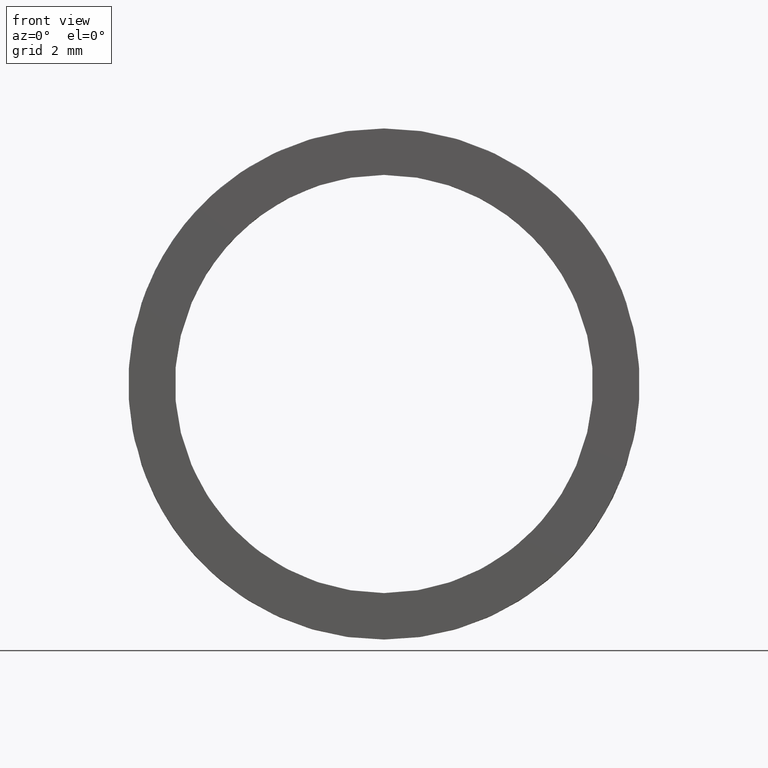
[diagram: clean part render]
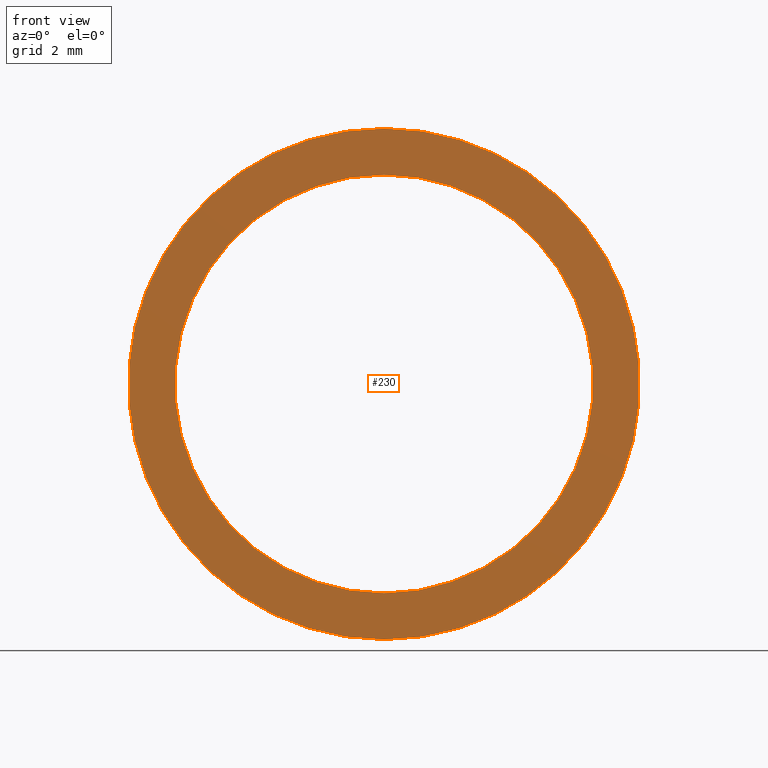
[diagram: same view with one face highlighted and labeled with its STEP entity id]
A machine part, front view. The second image highlights one B-rep face of the part: STEP entity #230.
In plain terms, the highlighted planar face has unit normal (-0, 1, 0).
Its self-contained STEP definition (entity closure, byte-faithful):
#32 = EDGE_LOOP ( 'NONE', ( #314, #225 ) ) ;
#44 = EDGE_CURVE ( 'NONE', #435, #418, #563, .T. ) ;
#50 = ORIENTED_EDGE ( 'NONE', *, *, #496, .F. ) ;
#53 = AXIS2_PLACEMENT_3D ( 'NONE', #406, #410, #182 ) ;
#58 = CIRCLE ( 'NONE', #311, 5.500000000000006200 ) ;
#115 = AXIS2_PLACEMENT_3D ( 'NONE', #414, #421, #509 ) ;
#116 = CARTESIAN_POINT ( 'NONE',  ( 0.0000000000000000000, -4.464249787179428900, 5.500000000000006200 ) ) ;
#141 = EDGE_CURVE ( 'NONE', #542, #308, #309, .T. ) ;
#179 = ORIENTED_EDGE ( 'NONE', *, *, #141, .F. ) ;
#182 = DIRECTION ( 'NONE',  ( 0.0000000000000000000, 0.0000000000000000000, 1.000000000000000000 ) ) ;
#205 = DIRECTION ( 'NONE',  ( 0.0000000000000000000, 0.0000000000000000000, 1.000000000000000000 ) ) ;
#225 = ORIENTED_EDGE ( 'NONE', *, *, #352, .T. ) ;
#230 = ADVANCED_FACE ( 'NONE', ( #494, #271 ), #373, .F. ) ;
#257 = CARTESIAN_POINT ( 'NONE',  ( 0.0000000000000000000, -4.464249787179428900, 4.500000000000007100 ) ) ;
#263 = AXIS2_PLACEMENT_3D ( 'NONE', #333, #425, #205 ) ;
#271 = FACE_BOUND ( 'NONE', #32, .T. ) ;
#299 = DIRECTION ( 'NONE',  ( 0.0000000000000000000, 0.0000000000000000000, 1.000000000000000000 ) ) ;
#308 = VERTEX_POINT ( 'NONE', #116 ) ;
#309 = CIRCLE ( 'NONE', #115, 5.500000000000006200 ) ;
#311 = AXIS2_PLACEMENT_3D ( 'NONE', #394, #388, #299 ) ;
#314 = ORIENTED_EDGE ( 'NONE', *, *, #44, .T. ) ;
#327 = AXIS2_PLACEMENT_3D ( 'NONE', #332, #512, #467 ) ;
#332 = CARTESIAN_POINT ( 'NONE',  ( 4.500000000000007100, -4.464249787179429800, 0.0000000000000000000 ) ) ;
#333 = CARTESIAN_POINT ( 'NONE',  ( 0.0000000000000000000, -4.464249787179428900, 0.0000000000000000000 ) ) ;
#352 = EDGE_CURVE ( 'NONE', #418, #435, #474, .T. ) ;
#373 = PLANE ( 'NONE',  #327 ) ;
#388 = DIRECTION ( 'NONE',  ( -0.0000000000000000000, 1.000000000000000000, -0.0000000000000000000 ) ) ;
#394 = CARTESIAN_POINT ( 'NONE',  ( 0.0000000000000000000, -4.464249787179428900, 0.0000000000000000000 ) ) ;
#406 = CARTESIAN_POINT ( 'NONE',  ( 0.0000000000000000000, -4.464249787179428900, 0.0000000000000000000 ) ) ;
#410 = DIRECTION ( 'NONE',  ( -0.0000000000000000000, 1.000000000000000000, -0.0000000000000000000 ) ) ;
#414 = CARTESIAN_POINT ( 'NONE',  ( 0.0000000000000000000, -4.464249787179428900, 0.0000000000000000000 ) ) ;
#418 = VERTEX_POINT ( 'NONE', #432 ) ;
#421 = DIRECTION ( 'NONE',  ( -0.0000000000000000000, 1.000000000000000000, -0.0000000000000000000 ) ) ;
#425 = DIRECTION ( 'NONE',  ( -0.0000000000000000000, 1.000000000000000000, -0.0000000000000000000 ) ) ;
#430 = EDGE_LOOP ( 'NONE', ( #50, #179 ) ) ;
#432 = CARTESIAN_POINT ( 'NONE',  ( 5.510910596163098400E-016, -4.464249787179428900, -4.500000000000007100 ) ) ;
#435 = VERTEX_POINT ( 'NONE', #257 ) ;
#467 = DIRECTION ( 'NONE',  ( 0.0000000000000000000, 0.0000000000000000000, 1.000000000000000000 ) ) ;
#474 = CIRCLE ( 'NONE', #263, 4.500000000000007100 ) ;
#494 = FACE_OUTER_BOUND ( 'NONE', #430, .T. ) ;
#496 = EDGE_CURVE ( 'NONE', #308, #542, #58, .T. ) ;
#509 = DIRECTION ( 'NONE',  ( 0.0000000000000000000, 0.0000000000000000000, 1.000000000000000000 ) ) ;
#512 = DIRECTION ( 'NONE',  ( -0.0000000000000000000, 1.000000000000000000, 0.0000000000000000000 ) ) ;
#527 = CARTESIAN_POINT ( 'NONE',  ( 6.735557395310450900E-016, -4.464249787179428900, -5.500000000000006200 ) ) ;
#542 = VERTEX_POINT ( 'NONE', #527 ) ;
#563 = CIRCLE ( 'NONE', #53, 4.500000000000007100 ) ;